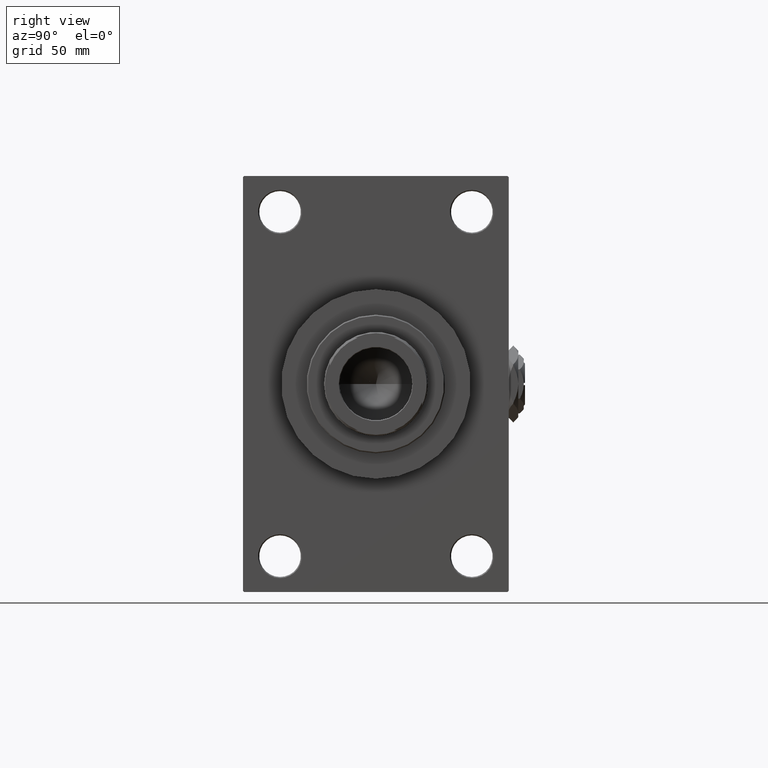
[diagram: clean part render]
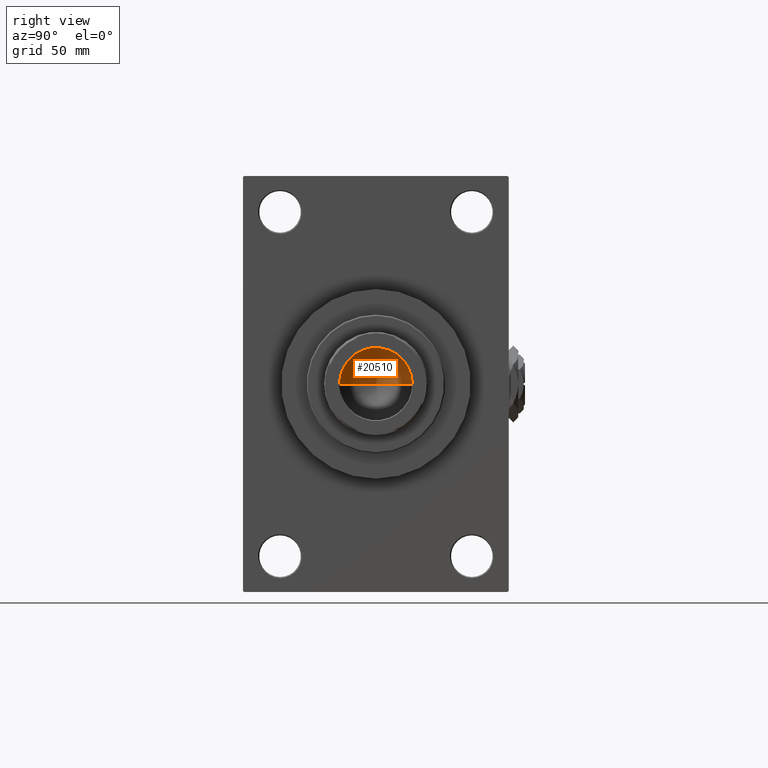
[diagram: same view with one face highlighted and labeled with its STEP entity id]
A machine part, right view. The second image highlights one B-rep face of the part: STEP entity #20510.
In plain terms, the highlighted conical surface has half-angle 59 deg.
Its self-contained STEP definition (entity closure, byte-faithful):
#3228 = ORIENTED_EDGE ( 'NONE', *, *, #8110, .T. ) ;
#7269 = CONICAL_SURFACE ( 'NONE', #9659, 15.74999999999998934, 1.029744258676652979 ) ;
#7304 = CARTESIAN_POINT ( 'NONE',  ( 0.000000000000000000, 0.000000000000000000, 111.0000000000000000 ) ) ;
#7777 = CIRCLE ( 'NONE', #14208, 15.74999999999998934 ) ;
#8110 = EDGE_CURVE ( 'NONE', #46882, #17655, #7777, .T. ) ;
#9659 = AXIS2_PLACEMENT_3D ( 'NONE', #31830, #12231, #39662 ) ;
#11163 = LINE ( 'NONE', #14446, #13965 ) ;
#12231 = DIRECTION ( 'NONE',  ( -0.000000000000000000, -0.000000000000000000, 1.000000000000000000 ) ) ;
#13965 = VECTOR ( 'NONE', #26734, 1000.000000000000000 ) ;
#14208 = AXIS2_PLACEMENT_3D ( 'NONE', #7304, #29444, #44822 ) ;
#14446 = CARTESIAN_POINT ( 'NONE',  ( -15.74999999999998934, 1.928818708657080161E-15, 111.0000000000000000 ) ) ;
#14458 = ORIENTED_EDGE ( 'NONE', *, *, #41603, .F. ) ;
#17655 = VERTEX_POINT ( 'NONE', #22715 ) ;
#20510 = ADVANCED_FACE ( 'NONE', ( #43186 ), #7269, .F. ) ;
#22119 = ORIENTED_EDGE ( 'NONE', *, *, #46647, .T. ) ;
#22715 = CARTESIAN_POINT ( 'NONE',  ( 15.74999999999998934, 0.000000000000000000, 111.0000000000000000 ) ) ;
#22899 = CARTESIAN_POINT ( 'NONE',  ( -15.74999999999998934, 1.928818708657080161E-15, 111.0000000000000000 ) ) ;
#24737 = CARTESIAN_POINT ( 'NONE',  ( -1.584115414415908206E-14, 0.000000000000000000, 101.5364452503159072 ) ) ;
#26734 = DIRECTION ( 'NONE',  ( -0.8571673007021115565, 1.049727191138617710E-16, 0.5150380749100554878 ) ) ;
#29444 = DIRECTION ( 'NONE',  ( -0.000000000000000000, -0.000000000000000000, 1.000000000000000000 ) ) ;
#30242 = LINE ( 'NONE', #34516, #39483 ) ;
#30770 = EDGE_LOOP ( 'NONE', ( #14458, #22119, #3228 ) ) ;
#31830 = CARTESIAN_POINT ( 'NONE',  ( 0.000000000000000000, 0.000000000000000000, 111.0000000000000000 ) ) ;
#34516 = CARTESIAN_POINT ( 'NONE',  ( 15.74999999999998934, 0.000000000000000000, 111.0000000000000000 ) ) ;
#34665 = VERTEX_POINT ( 'NONE', #24737 ) ;
#39483 = VECTOR ( 'NONE', #45616, 1000.000000000000000 ) ;
#39662 = DIRECTION ( 'NONE',  ( 1.000000000000000000, 0.000000000000000000, 0.000000000000000000 ) ) ;
#41603 = EDGE_CURVE ( 'NONE', #34665, #17655, #30242, .T. ) ;
#43186 = FACE_OUTER_BOUND ( 'NONE', #30770, .T. ) ;
#44822 = DIRECTION ( 'NONE',  ( 1.000000000000000000, 0.000000000000000000, 0.000000000000000000 ) ) ;
#45616 = DIRECTION ( 'NONE',  ( 0.8571673007021115565, 0.000000000000000000, 0.5150380749100554878 ) ) ;
#46647 = EDGE_CURVE ( 'NONE', #34665, #46882, #11163, .T. ) ;
#46882 = VERTEX_POINT ( 'NONE', #22899 ) ;